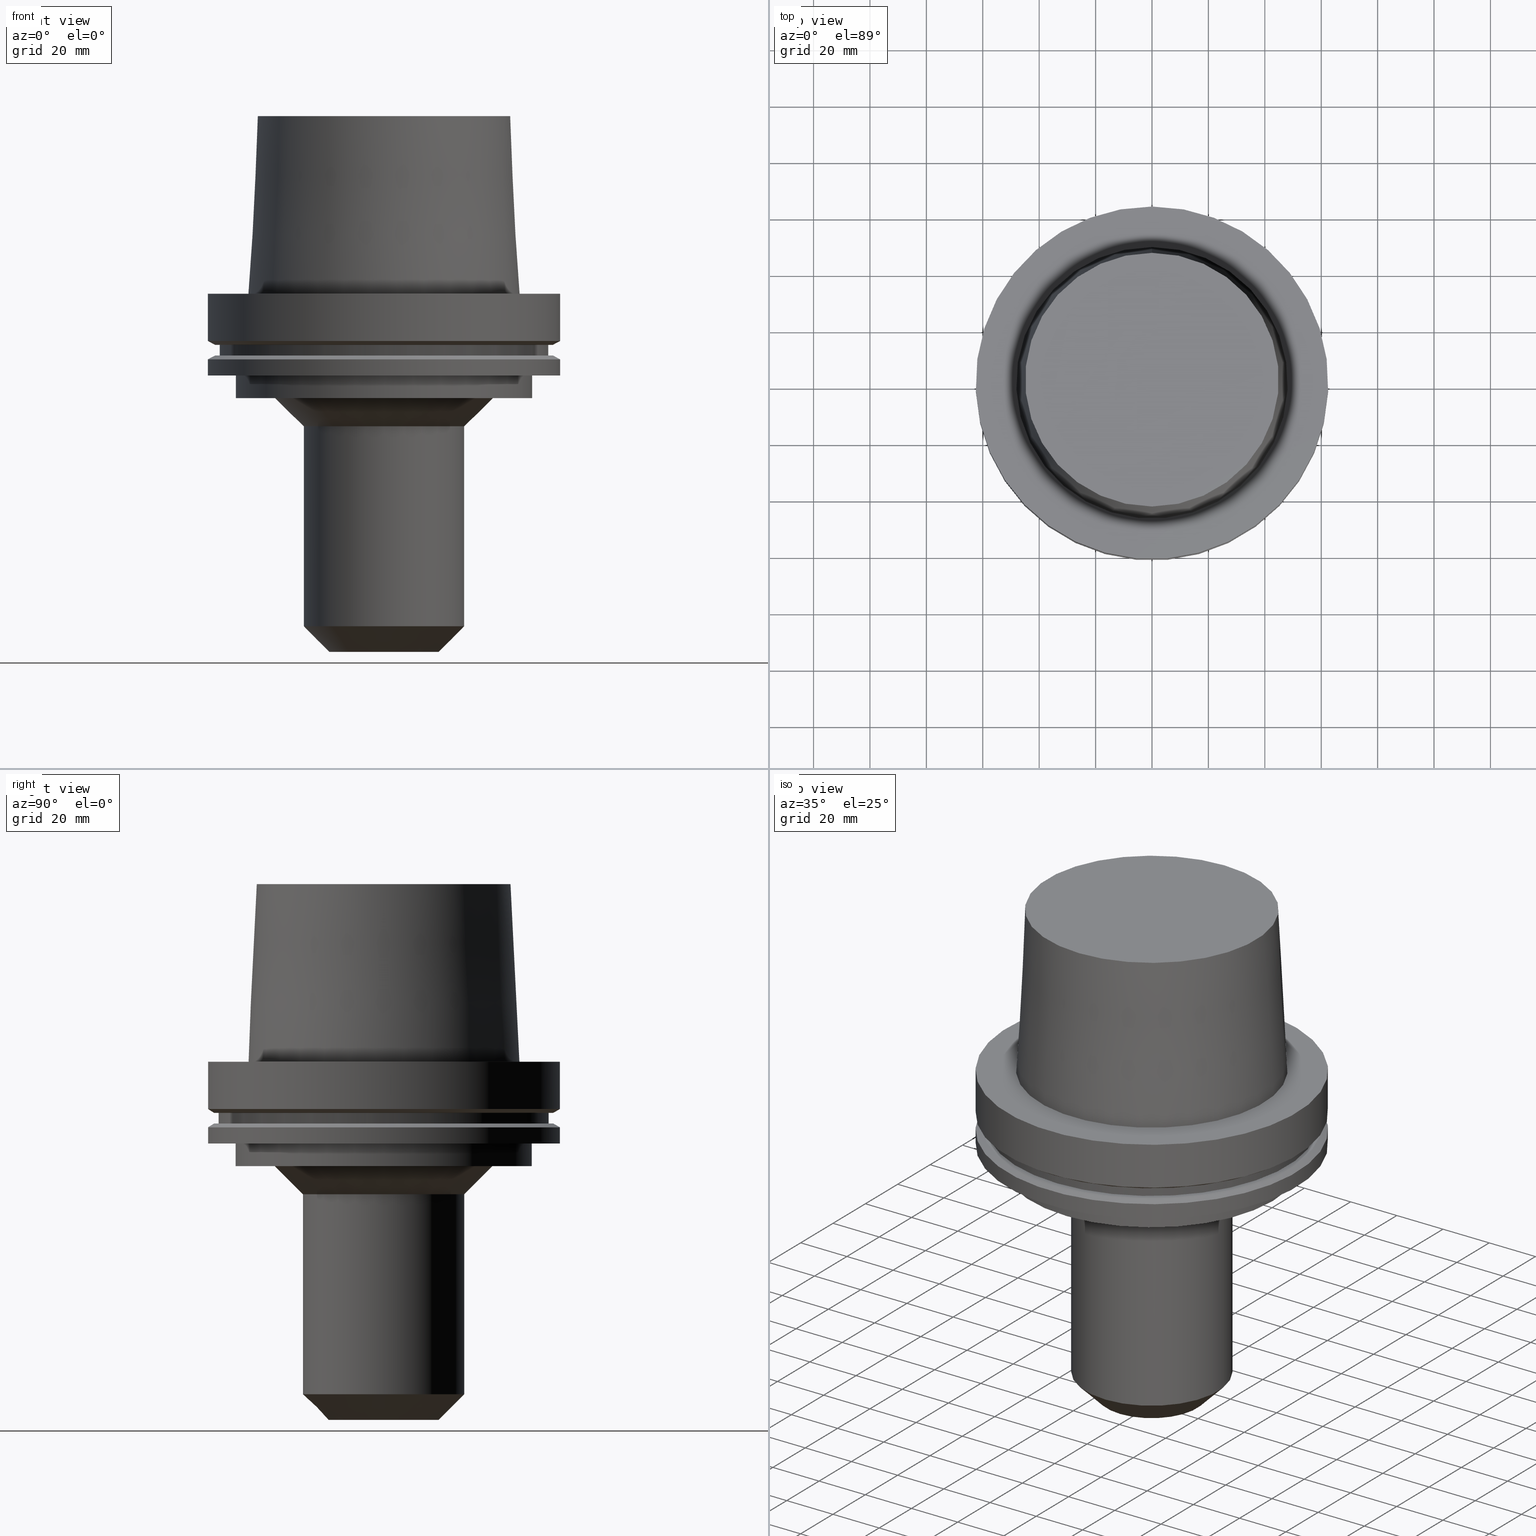
[diagram: canonical four-view strip — front | top / right | iso, engineering-drawing reading convention]
A machine part, canonical four-view strip (front | top / right | iso — engineering-drawing reading convention). The complete STEP part file that produces these views, byte-faithful:
ISO-10303-21;
HEADER;
FILE_DESCRIPTION((''),'1');
FILE_NAME('V:/02_3D_Field-HP\X2\FF71FF6FFF8CFF9F5916\X0\2013/02_Step_Field-HP\X2\FF71FF6FFF8CFF9F5916\X0\2013/HSK-A125-EM1.000-5.stp','2017-07-11T00:19:47',(''),(''),'Spatial Interop R21 SP3','Kubotek KeyCreator 2011 V10.0.2 (22737)',' ');
FILE_SCHEMA(('automotive_design'));
ENDSEC;
DATA;
#1=MECHANICAL_DESIGN_GEOMETRIC_PRESENTATION_REPRESENTATION(' ',(#10,#11,#12,#13,#14,#15,#16,#17,#18,#19,#20,#21,#22,#23,#24,#25,#26,#27,#28,#29,#30,#31,#32,#33,#34,#35,#36,#37,#38,#39,#40,#41,#42,#43),#6);
#2=PRODUCT_DEFINITION_CONTEXT('',#44,'design');
#3=APPLICATION_PROTOCOL_DEFINITION('INTERNATIONAL STANDARD','automotive_design',1994,#44);
#4=PRODUCT_CATEGORY_RELATIONSHIP('NONE','NONE',#45,#46);
#5=SHAPE_DEFINITION_REPRESENTATION(#47,#48);
#6= (GEOMETRIC_REPRESENTATION_CONTEXT(3)GLOBAL_UNCERTAINTY_ASSIGNED_CONTEXT((#51))GLOBAL_UNIT_ASSIGNED_CONTEXT((#53,#54,#55))REPRESENTATION_CONTEXT('NONE','WORKSPACE'));
#10=STYLED_ITEM('',(#57,#58),#59);
#11=STYLED_ITEM('',(#60,#61),#62);
#12=STYLED_ITEM('',(#63),#64);
#13=STYLED_ITEM('',(#65,#66),#67);
#14=STYLED_ITEM('',(#68,#69),#70);
#15=STYLED_ITEM('',(#71,#72),#73);
#16=STYLED_ITEM('',(#74,#75),#76);
#17=STYLED_ITEM('',(#77,#78),#79);
#18=STYLED_ITEM('',(#80),#81);
#19=STYLED_ITEM('',(#82,#83),#84);
#20=STYLED_ITEM('',(#85,#86),#87);
#21=STYLED_ITEM('',(#88,#89),#90);
#22=STYLED_ITEM('',(#91,#92),#93);
#23=STYLED_ITEM('',(#94),#95);
#24=STYLED_ITEM('',(#96),#97);
#25=STYLED_ITEM('',(#98),#99);
#26=STYLED_ITEM('',(#100),#101);
#27=STYLED_ITEM('',(#102),#103);
#28=STYLED_ITEM('',(#104),#105);
#29=STYLED_ITEM('',(#106,#107),#108);
#30=STYLED_ITEM('',(#109),#110);
#31=STYLED_ITEM('',(#111),#112);
#32=STYLED_ITEM('',(#113,#114),#115);
#33=STYLED_ITEM('',(#116,#117),#118);
#34=STYLED_ITEM('',(#119),#120);
#35=STYLED_ITEM('',(#121),#122);
#36=STYLED_ITEM('',(#123,#124),#125);
#37=STYLED_ITEM('',(#126),#127);
#38=STYLED_ITEM('',(#128),#129);
#39=STYLED_ITEM('',(#130,#131),#132);
#40=STYLED_ITEM('',(#133),#134);
#41=STYLED_ITEM('',(#135,#136),#137);
#42=STYLED_ITEM('',(#138,#139),#140);
#43=STYLED_ITEM('',(#141),#142);
#44=APPLICATION_CONTEXT(' ');
#45=PRODUCT_CATEGORY('part','NONE');
#46=PRODUCT_RELATED_PRODUCT_CATEGORY('detail',' ',(#143));
#47=PRODUCT_DEFINITION_SHAPE('NONE','NONE',#144);
#48=ADVANCED_BREP_SHAPE_REPRESENTATION('Unnamed[1]',(#73,#145),#6);
#51=UNCERTAINTY_MEASURE_WITH_UNIT(LENGTH_MEASURE(1.0E-006),#53,'','');
#53= (CONVERSION_BASED_UNIT('MILLIMETRE',#148)LENGTH_UNIT()NAMED_UNIT(#151));
#54= (NAMED_UNIT(#153)PLANE_ANGLE_UNIT()SI_UNIT($,.RADIAN.));
#55= (NAMED_UNIT(#153)SOLID_ANGLE_UNIT()SI_UNIT($,.STERADIAN.));
#57=PRESENTATION_STYLE_ASSIGNMENT((#159));
#58=PRESENTATION_STYLE_ASSIGNMENT((#160));
#59=ADVANCED_FACE('Unnamed[1]',(#161,#162),#163,.T.);
#60=PRESENTATION_STYLE_ASSIGNMENT((#164));
#61=PRESENTATION_STYLE_ASSIGNMENT((#165));
#62=ADVANCED_FACE('Unnamed[1]',(#166,#167),#168,.T.);
#63=PRESENTATION_STYLE_ASSIGNMENT((#169));
#64=EDGE_CURVE('Unnamed[1]',#170,#170,#171,.T.);
#65=PRESENTATION_STYLE_ASSIGNMENT((#172));
#66=PRESENTATION_STYLE_ASSIGNMENT((#173));
#67=ADVANCED_FACE('Unnamed[1]',(#174),#175,.T.);
#68=PRESENTATION_STYLE_ASSIGNMENT((#176));
#69=PRESENTATION_STYLE_ASSIGNMENT((#177));
#70=ADVANCED_FACE('Unnamed[1]',(#178,#179),#180,.T.);
#71=PRESENTATION_STYLE_ASSIGNMENT((#181));
#72=PRESENTATION_STYLE_ASSIGNMENT((#182));
#73=MANIFOLD_SOLID_BREP('Unnamed[1]',#183);
#74=PRESENTATION_STYLE_ASSIGNMENT((#184));
#75=PRESENTATION_STYLE_ASSIGNMENT((#185));
#76=ADVANCED_FACE('Unnamed[1]',(#186,#187),#188,.T.);
#77=PRESENTATION_STYLE_ASSIGNMENT((#189));
#78=PRESENTATION_STYLE_ASSIGNMENT((#190));
#79=ADVANCED_FACE('Unnamed[1]',(#191,#192),#193,.T.);
#80=PRESENTATION_STYLE_ASSIGNMENT((#194));
#81=EDGE_CURVE('Unnamed[1]',#195,#195,#196,.T.);
#82=PRESENTATION_STYLE_ASSIGNMENT((#197));
#83=PRESENTATION_STYLE_ASSIGNMENT((#198));
#84=ADVANCED_FACE('Unnamed[1]',(#199,#200),#201,.T.);
#85=PRESENTATION_STYLE_ASSIGNMENT((#202));
#86=PRESENTATION_STYLE_ASSIGNMENT((#203));
#87=ADVANCED_FACE('Unnamed[1]',(#204,#205),#206,.T.);
#88=PRESENTATION_STYLE_ASSIGNMENT((#207));
#89=PRESENTATION_STYLE_ASSIGNMENT((#208));
#90=ADVANCED_FACE('Unnamed[1]',(#209,#210),#211,.T.);
#91=PRESENTATION_STYLE_ASSIGNMENT((#212));
#92=PRESENTATION_STYLE_ASSIGNMENT((#213));
#93=ADVANCED_FACE('Unnamed[1]',(#214,#215),#216,.T.);
#94=PRESENTATION_STYLE_ASSIGNMENT((#217));
#95=EDGE_CURVE('Unnamed[1]',#218,#218,#219,.T.);
#96=PRESENTATION_STYLE_ASSIGNMENT((#220));
#97=EDGE_CURVE('Unnamed[1]',#221,#221,#222,.T.);
#98=PRESENTATION_STYLE_ASSIGNMENT((#223));
#99=EDGE_CURVE('Unnamed[1]',#224,#224,#225,.T.);
#100=PRESENTATION_STYLE_ASSIGNMENT((#226));
#101=EDGE_CURVE('Unnamed[1]',#227,#227,#228,.T.);
#102=PRESENTATION_STYLE_ASSIGNMENT((#229));
#103=EDGE_CURVE('Unnamed[1]',#230,#230,#231,.T.);
#104=PRESENTATION_STYLE_ASSIGNMENT((#232));
#105=EDGE_CURVE('Unnamed[1]',#233,#233,#234,.T.);
#106=PRESENTATION_STYLE_ASSIGNMENT((#235));
#107=PRESENTATION_STYLE_ASSIGNMENT((#236));
#108=ADVANCED_FACE('Unnamed[1]',(#237,#238),#239,.T.);
#109=PRESENTATION_STYLE_ASSIGNMENT((#240));
#110=EDGE_CURVE('Unnamed[1]',#241,#241,#242,.T.);
#111=PRESENTATION_STYLE_ASSIGNMENT((#243));
#112=EDGE_CURVE('Unnamed[1]',#244,#244,#245,.T.);
#113=PRESENTATION_STYLE_ASSIGNMENT((#246));
#114=PRESENTATION_STYLE_ASSIGNMENT((#247));
#115=ADVANCED_FACE('Unnamed[1]',(#248),#249,.T.);
#116=PRESENTATION_STYLE_ASSIGNMENT((#250));
#117=PRESENTATION_STYLE_ASSIGNMENT((#251));
#118=ADVANCED_FACE('Unnamed[1]',(#252,#253),#254,.T.);
#119=PRESENTATION_STYLE_ASSIGNMENT((#255));
#120=EDGE_CURVE('Unnamed[1]',#256,#256,#257,.T.);
#121=PRESENTATION_STYLE_ASSIGNMENT((#258));
#122=EDGE_CURVE('Unnamed[1]',#259,#259,#260,.T.);
#123=PRESENTATION_STYLE_ASSIGNMENT((#261));
#124=PRESENTATION_STYLE_ASSIGNMENT((#262));
#125=ADVANCED_FACE('Unnamed[1]',(#263,#264),#265,.T.);
#126=PRESENTATION_STYLE_ASSIGNMENT((#266));
#127=EDGE_CURVE('Unnamed[1]',#267,#267,#268,.T.);
#128=PRESENTATION_STYLE_ASSIGNMENT((#269));
#129=EDGE_CURVE('Unnamed[1]',#270,#270,#271,.T.);
#130=PRESENTATION_STYLE_ASSIGNMENT((#272));
#131=PRESENTATION_STYLE_ASSIGNMENT((#273));
#132=ADVANCED_FACE('Unnamed[1]',(#274,#275),#276,.T.);
#133=PRESENTATION_STYLE_ASSIGNMENT((#277));
#134=EDGE_CURVE('Unnamed[1]',#278,#278,#279,.T.);
#135=PRESENTATION_STYLE_ASSIGNMENT((#280));
#136=PRESENTATION_STYLE_ASSIGNMENT((#281));
#137=ADVANCED_FACE('Unnamed[1]',(#282,#283),#284,.T.);
#138=PRESENTATION_STYLE_ASSIGNMENT((#285));
#139=PRESENTATION_STYLE_ASSIGNMENT((#286));
#140=ADVANCED_FACE('Unnamed[1]',(#287,#288),#289,.T.);
#141=PRESENTATION_STYLE_ASSIGNMENT((#290));
#142=EDGE_CURVE('Unnamed[1]',#291,#291,#292,.T.);
#143=PRODUCT('Unnamed[1]','Unnamed[1]','PART-Unnamed[1]-DESC',(#293));
#144=PRODUCT_DEFINITION('NONE','NONE',#294,#2);
#145=AXIS2_PLACEMENT_3D('',#295,#296,#297);
#148=LENGTH_MEASURE_WITH_UNIT(LENGTH_MEASURE(1.0),#298);
#151=DIMENSIONAL_EXPONENTS(1.0,0.0,0.0,0.0,0.0,0.0,0.0);
#153=DIMENSIONAL_EXPONENTS(0.0,0.0,0.0,0.0,0.0,0.0,0.0);
#159=SURFACE_STYLE_USAGE(.BOTH.,#299);
#160=CURVE_STYLE('',#300,POSITIVE_LENGTH_MEASURE(1000.0),#301);
#161=FACE_BOUND('',#302,.T.);
#162=FACE_BOUND('',#303,.T.);
#163=CYLINDRICAL_SURFACE('',#304,62.5000000000001);
#164=SURFACE_STYLE_USAGE(.BOTH.,#305);
#165=CURVE_STYLE('',#306,POSITIVE_LENGTH_MEASURE(1000.0),#307);
#166=FACE_BOUND('',#308,.T.);
#167=FACE_BOUND('',#309,.T.);
#168=CONICAL_SURFACE('',#310,46.5560961923844,0.0500583457465964);
#169=CURVE_STYLE('',#311,POSITIVE_LENGTH_MEASURE(1000.0),#312);
#170=VERTEX_POINT('',#313);
#171=CIRCLE('',#314,52.4999999999998);
#172=SURFACE_STYLE_USAGE(.BOTH.,#315);
#173=CURVE_STYLE('',#316,POSITIVE_LENGTH_MEASURE(1000.0),#317);
#174=FACE_OUTER_BOUND('',#318,.T.);
#175=PLANE('',#319);
#176=SURFACE_STYLE_USAGE(.BOTH.,#320);
#177=CURVE_STYLE('',#321,POSITIVE_LENGTH_MEASURE(1000.0),#322);
#178=FACE_BOUND('',#323,.T.);
#179=FACE_BOUND('',#324,.T.);
#180=CYLINDRICAL_SURFACE('',#325,52.5);
#181=SURFACE_STYLE_USAGE(.BOTH.,#326);
#182=CURVE_STYLE('',#327,POSITIVE_LENGTH_MEASURE(1000.0),#328);
#183=CLOSED_SHELL('',(#115,#62,#137,#59,#90,#118,#84,#87,#93,#79,#125,#70,#140,#108,#132,#76,#67));
#184=SURFACE_STYLE_USAGE(.BOTH.,#329);
#185=CURVE_STYLE('',#330,POSITIVE_LENGTH_MEASURE(1000.0),#331);
#186=FACE_BOUND('',#332,.T.);
#187=FACE_BOUND('',#333,.T.);
#188=CONICAL_SURFACE('',#334,24.0500000000001,0.785398163397455);
#189=SURFACE_STYLE_USAGE(.BOTH.,#335);
#190=CURVE_STYLE('',#336,POSITIVE_LENGTH_MEASURE(1000.0),#337);
#191=FACE_BOUND('',#338,.T.);
#192=FACE_BOUND('',#339,.T.);
#193=CYLINDRICAL_SURFACE('',#340,62.5);
#194=CURVE_STYLE('',#341,POSITIVE_LENGTH_MEASURE(1000.0),#342);
#195=VERTEX_POINT('',#343);
#196=CIRCLE('',#344,19.5000000000001);
#197=SURFACE_STYLE_USAGE(.BOTH.,#345);
#198=CURVE_STYLE('',#346,POSITIVE_LENGTH_MEASURE(1000.0),#347);
#199=FACE_BOUND('',#348,.T.);
#200=FACE_BOUND('',#349,.T.);
#201=CYLINDRICAL_SURFACE('',#350,58.4999999999999);
#202=SURFACE_STYLE_USAGE(.BOTH.,#351);
#203=CURVE_STYLE('',#352,POSITIVE_LENGTH_MEASURE(1000.0),#353);
#204=FACE_OUTER_BOUND('',#354,.T.);
#205=FACE_BOUND('',#355,.T.);
#206=PLANE('',#356);
#207=SURFACE_STYLE_USAGE(.BOTH.,#357);
#208=CURVE_STYLE('',#358,POSITIVE_LENGTH_MEASURE(1000.0),#359);
#209=FACE_BOUND('',#360,.T.);
#210=FACE_BOUND('',#361,.T.);
#211=CONICAL_SURFACE('',#362,61.3112976320956,1.04719755119668);
#212=SURFACE_STYLE_USAGE(.BOTH.,#363);
#213=CURVE_STYLE('',#364,POSITIVE_LENGTH_MEASURE(1000.0),#365);
#214=FACE_BOUND('',#366,.T.);
#215=FACE_BOUND('',#367,.T.);
#216=CONICAL_SURFACE('',#368,61.311297632097,1.04719755119646);
#217=CURVE_STYLE('',#369,POSITIVE_LENGTH_MEASURE(1000.0),#370);
#218=VERTEX_POINT('',#371);
#219=CIRCLE('',#372,28.6);
#220=CURVE_STYLE('',#373,POSITIVE_LENGTH_MEASURE(1000.0),#374);
#221=VERTEX_POINT('',#375);
#222=CIRCLE('',#376,52.5000000000003);
#223=CURVE_STYLE('',#377,POSITIVE_LENGTH_MEASURE(1000.0),#378);
#224=VERTEX_POINT('',#379);
#225=CIRCLE('',#380,60.122595264194);
#226=CURVE_STYLE('',#381,POSITIVE_LENGTH_MEASURE(1000.0),#382);
#227=VERTEX_POINT('',#383);
#228=CIRCLE('',#384,62.5);
#229=CURVE_STYLE('',#385,POSITIVE_LENGTH_MEASURE(1000.0),#386);
#230=VERTEX_POINT('',#387);
#231=CIRCLE('',#388,38.6);
#232=CURVE_STYLE('',#389,POSITIVE_LENGTH_MEASURE(1000.0),#390);
#233=VERTEX_POINT('',#391);
#234=CIRCLE('',#392,28.6);
#235=SURFACE_STYLE_USAGE(.BOTH.,#393);
#236=CURVE_STYLE('',#394,POSITIVE_LENGTH_MEASURE(1000.0),#395);
#237=FACE_BOUND('',#396,.T.);
#238=FACE_BOUND('',#397,.T.);
#239=CONICAL_SURFACE('',#398,33.6,0.785398163397306);
#240=CURVE_STYLE('',#399,POSITIVE_LENGTH_MEASURE(1000.0),#400);
#241=VERTEX_POINT('',#401);
#242=CIRCLE('',#402,62.5000000000002);
#243=CURVE_STYLE('',#403,POSITIVE_LENGTH_MEASURE(1000.0),#404);
#244=VERTEX_POINT('',#405);
#245=CIRCLE('',#406,58.5);
#246=SURFACE_STYLE_USAGE(.BOTH.,#407);
#247=CURVE_STYLE('',#408,POSITIVE_LENGTH_MEASURE(1000.0),#409);
#248=FACE_OUTER_BOUND('',#410,.T.);
#249=PLANE('',#411);
#250=SURFACE_STYLE_USAGE(.BOTH.,#412);
#251=CURVE_STYLE('',#413,POSITIVE_LENGTH_MEASURE(1000.0),#414);
#252=FACE_BOUND('',#415,.T.);
#253=FACE_OUTER_BOUND('',#416,.T.);
#254=PLANE('',#417);
#255=CURVE_STYLE('',#418,POSITIVE_LENGTH_MEASURE(1000.0),#419);
#256=VERTEX_POINT('',#420);
#257=CIRCLE('',#421,44.9779398797591);
#258=CURVE_STYLE('',#422,POSITIVE_LENGTH_MEASURE(1000.0),#423);
#259=VERTEX_POINT('',#424);
#260=CIRCLE('',#425,48.1342525050097);
#261=SURFACE_STYLE_USAGE(.BOTH.,#426);
#262=CURVE_STYLE('',#427,POSITIVE_LENGTH_MEASURE(1000.0),#428);
#263=FACE_BOUND('',#429,.T.);
#264=FACE_OUTER_BOUND('',#430,.T.);
#265=PLANE('',#431);
#266=CURVE_STYLE('',#432,POSITIVE_LENGTH_MEASURE(1000.0),#433);
#267=VERTEX_POINT('',#434);
#268=CIRCLE('',#435,58.4999999999998);
#269=CURVE_STYLE('',#436,POSITIVE_LENGTH_MEASURE(1000.0),#437);
#270=VERTEX_POINT('',#438);
#271=CIRCLE('',#439,60.1225952641912);
#272=SURFACE_STYLE_USAGE(.BOTH.,#440);
#273=CURVE_STYLE('',#441,POSITIVE_LENGTH_MEASURE(1000.0),#442);
#274=FACE_BOUND('',#443,.T.);
#275=FACE_BOUND('',#444,.T.);
#276=CYLINDRICAL_SURFACE('',#445,28.6);
#277=CURVE_STYLE('',#446,POSITIVE_LENGTH_MEASURE(1000.0),#447);
#278=VERTEX_POINT('',#448);
#279=CIRCLE('',#449,62.5);
#280=SURFACE_STYLE_USAGE(.BOTH.,#450);
#281=CURVE_STYLE('',#451,POSITIVE_LENGTH_MEASURE(1000.0),#452);
#282=FACE_OUTER_BOUND('',#453,.T.);
#283=FACE_BOUND('',#454,.T.);
#284=PLANE('',#455);
#285=SURFACE_STYLE_USAGE(.BOTH.,#456);
#286=CURVE_STYLE('',#457,POSITIVE_LENGTH_MEASURE(1000.0),#458);
#287=FACE_BOUND('',#459,.T.);
#288=FACE_OUTER_BOUND('',#460,.T.);
#289=PLANE('',#461);
#290=CURVE_STYLE('',#462,POSITIVE_LENGTH_MEASURE(1000.0),#463);
#291=VERTEX_POINT('',#464);
#292=CIRCLE('',#465,62.5);
#293=PRODUCT_CONTEXT('',#44,'mechanical');
#294=PRODUCT_DEFINITION_FORMATION_WITH_SPECIFIED_SOURCE(' ','NONE',#143,.NOT_KNOWN.);
#295=CARTESIAN_POINT('',(0.0,0.0,0.0));
#296=DIRECTION('',(0.0,0.0,1.0));
#297=DIRECTION('',(1.0,0.0,0.0));
#298= (NAMED_UNIT(#151)LENGTH_UNIT()SI_UNIT(.MILLI.,.METRE.));
#299=SURFACE_SIDE_STYLE('',(#467));
#300=DRAUGHTING_PRE_DEFINED_CURVE_FONT('continuous');
#301=COLOUR_RGB('',0.0,1.0,0.0);
#302=EDGE_LOOP('',(#468));
#303=EDGE_LOOP('',(#469));
#304=AXIS2_PLACEMENT_3D('',#470,#471,#472);
#305=SURFACE_SIDE_STYLE('',(#473));
#306=DRAUGHTING_PRE_DEFINED_CURVE_FONT('continuous');
#307=COLOUR_RGB('',0.0,1.0,0.0);
#308=EDGE_LOOP('',(#474));
#309=EDGE_LOOP('',(#475));
#310=AXIS2_PLACEMENT_3D('',#476,#477,#478);
#311=DRAUGHTING_PRE_DEFINED_CURVE_FONT('continuous');
#312=COLOUR_RGB('',0.0,1.0,0.0);
#313=CARTESIAN_POINT('',(2.26559657842261E-015,52.4999999999998,-37.0));
#314=AXIS2_PLACEMENT_3D('',#479,#480,#481);
#315=SURFACE_SIDE_STYLE('',(#482));
#316=DRAUGHTING_PRE_DEFINED_CURVE_FONT('continuous');
#317=COLOUR_RGB('',0.0,1.0,0.0);
#318=EDGE_LOOP('',(#483));
#319=AXIS2_PLACEMENT_3D('',#484,#485,#486);
#320=SURFACE_SIDE_STYLE('',(#487));
#321=DRAUGHTING_PRE_DEFINED_CURVE_FONT('continuous');
#322=COLOUR_RGB('',0.0,1.0,0.0);
#323=EDGE_LOOP('',(#488));
#324=EDGE_LOOP('',(#489));
#325=AXIS2_PLACEMENT_3D('',#490,#491,#492);
#326=SURFACE_SIDE_STYLE('',(#493));
#327=DRAUGHTING_PRE_DEFINED_CURVE_FONT('continuous');
#328=COLOUR_RGB('',0.0,1.0,0.0);
#329=SURFACE_SIDE_STYLE('',(#494));
#330=DRAUGHTING_PRE_DEFINED_CURVE_FONT('continuous');
#331=COLOUR_RGB('',0.0,1.0,0.0);
#332=EDGE_LOOP('',(#495));
#333=EDGE_LOOP('',(#496));
#334=AXIS2_PLACEMENT_3D('',#497,#498,#499);
#335=SURFACE_SIDE_STYLE('',(#500));
#336=DRAUGHTING_PRE_DEFINED_CURVE_FONT('continuous');
#337=COLOUR_RGB('',0.0,1.0,0.0);
#338=EDGE_LOOP('',(#501));
#339=EDGE_LOOP('',(#502));
#340=AXIS2_PLACEMENT_3D('',#503,#504,#505);
#341=DRAUGHTING_PRE_DEFINED_CURVE_FONT('continuous');
#342=COLOUR_RGB('',0.0,1.0,0.0);
#343=CARTESIAN_POINT('',(7.77650717458569E-015,19.5000000000001,-127.0));
#344=AXIS2_PLACEMENT_3D('',#506,#507,#508);
#345=SURFACE_SIDE_STYLE('',(#509));
#346=DRAUGHTING_PRE_DEFINED_CURVE_FONT('continuous');
#347=COLOUR_RGB('',0.0,1.0,0.0);
#348=EDGE_LOOP('',(#510));
#349=EDGE_LOOP('',(#511));
#350=AXIS2_PLACEMENT_3D('',#512,#513,#514);
#351=SURFACE_SIDE_STYLE('',(#515));
#352=DRAUGHTING_PRE_DEFINED_CURVE_FONT('continuous');
#353=COLOUR_RGB('',0.0,1.0,0.0);
#354=EDGE_LOOP('',(#516));
#355=EDGE_LOOP('',(#517));
#356=AXIS2_PLACEMENT_3D('',#518,#519,#520);
#357=SURFACE_SIDE_STYLE('',(#521));
#358=DRAUGHTING_PRE_DEFINED_CURVE_FONT('continuous');
#359=COLOUR_RGB('',0.0,1.0,0.0);
#360=EDGE_LOOP('',(#522));
#361=EDGE_LOOP('',(#523));
#362=AXIS2_PLACEMENT_3D('',#524,#525,#526);
#363=SURFACE_SIDE_STYLE('',(#527));
#364=DRAUGHTING_PRE_DEFINED_CURVE_FONT('continuous');
#365=COLOUR_RGB('',0.0,1.0,0.0);
#366=EDGE_LOOP('',(#528));
#367=EDGE_LOOP('',(#529));
#368=AXIS2_PLACEMENT_3D('',#530,#531,#532);
#369=DRAUGHTING_PRE_DEFINED_CURVE_FONT('continuous');
#370=COLOUR_RGB('',0.0,1.0,0.0);
#371=CARTESIAN_POINT('',(7.21929288097366E-015,28.6,-117.9));
#372=AXIS2_PLACEMENT_3D('',#533,#534,#535);
#373=DRAUGHTING_PRE_DEFINED_CURVE_FONT('continuous');
#374=COLOUR_RGB('',0.0,1.0,0.0);
#375=CARTESIAN_POINT('',(1.77573785876367E-015,52.5000000000003,-29.0000000000001));
#376=AXIS2_PLACEMENT_3D('',#536,#537,#538);
#377=DRAUGHTING_PRE_DEFINED_CURVE_FONT('continuous');
#378=COLOUR_RGB('',0.0,1.0,0.0);
#379=CARTESIAN_POINT('',(1.33945743656747E-015,60.122595264194,-21.8750000000009));
#380=AXIS2_PLACEMENT_3D('',#539,#540,#541);
#381=DRAUGHTING_PRE_DEFINED_CURVE_FONT('continuous');
#382=COLOUR_RGB('',0.0,1.0,0.0);
#383=CARTESIAN_POINT('',(1.77573785876367E-015,62.5,-29.0000000000001));
#384=AXIS2_PLACEMENT_3D('',#542,#543,#544);
#385=DRAUGHTING_PRE_DEFINED_CURVE_FONT('continuous');
#386=COLOUR_RGB('',0.0,1.0,0.0);
#387=CARTESIAN_POINT('',(2.26559657842261E-015,38.6,-37.0));
#388=AXIS2_PLACEMENT_3D('',#545,#546,#547);
#389=DRAUGHTING_PRE_DEFINED_CURVE_FONT('continuous');
#390=COLOUR_RGB('',0.0,1.0,0.0);
#391=CARTESIAN_POINT('',(2.87791997799646E-015,28.6,-47.0000000000029));
#392=AXIS2_PLACEMENT_3D('',#548,#549,#550);
#393=SURFACE_SIDE_STYLE('',(#551));
#394=DRAUGHTING_PRE_DEFINED_CURVE_FONT('continuous');
#395=COLOUR_RGB('',0.0,1.0,0.0);
#396=EDGE_LOOP('',(#552));
#397=EDGE_LOOP('',(#553));
#398=AXIS2_PLACEMENT_3D('',#554,#555,#556);
#399=DRAUGHTING_PRE_DEFINED_CURVE_FONT('continuous');
#400=COLOUR_RGB('',0.0,1.0,0.0);
#401=CARTESIAN_POINT('',(-5.58935713239973E-030,62.5000000000002,8.63540424946709E-014));
#402=AXIS2_PLACEMENT_3D('',#557,#558,#559);
#403=DRAUGHTING_PRE_DEFINED_CURVE_FONT('continuous');
#404=COLOUR_RGB('',0.0,1.0,0.0);
#405=CARTESIAN_POINT('',(1.10983616172739E-015,58.5,-18.1250000000017));
#406=AXIS2_PLACEMENT_3D('',#560,#561,#562);
#407=SURFACE_SIDE_STYLE('',(#563));
#408=DRAUGHTING_PRE_DEFINED_CURVE_FONT('continuous');
#409=COLOUR_RGB('',0.0,1.0,0.0);
#410=EDGE_LOOP('',(#564));
#411=AXIS2_PLACEMENT_3D('',#565,#566,#567);
#412=SURFACE_SIDE_STYLE('',(#568));
#413=DRAUGHTING_PRE_DEFINED_CURVE_FONT('continuous');
#414=COLOUR_RGB('',0.0,1.0,0.0);
#415=EDGE_LOOP('',(#569));
#416=EDGE_LOOP('',(#570));
#417=AXIS2_PLACEMENT_3D('',#571,#572,#573);
#418=DRAUGHTING_PRE_DEFINED_CURVE_FONT('continuous');
#419=COLOUR_RGB('',0.0,1.0,0.0);
#420=CARTESIAN_POINT('',(-3.85763741731416E-015,44.9779398797591,62.9999999999999));
#421=AXIS2_PLACEMENT_3D('',#574,#575,#576);
#422=DRAUGHTING_PRE_DEFINED_CURVE_FONT('continuous');
#423=COLOUR_RGB('',0.0,1.0,0.0);
#424=CARTESIAN_POINT('',(3.88342032297484E-029,48.1342525050097,-6.38005254174039E-013));
#425=AXIS2_PLACEMENT_3D('',#577,#578,#579);
#426=SURFACE_SIDE_STYLE('',(#580));
#427=DRAUGHTING_PRE_DEFINED_CURVE_FONT('continuous');
#428=COLOUR_RGB('',0.0,1.0,0.0);
#429=EDGE_LOOP('',(#581));
#430=EDGE_LOOP('',(#582));
#431=AXIS2_PLACEMENT_3D('',#583,#584,#585);
#432=DRAUGHTING_PRE_DEFINED_CURVE_FONT('continuous');
#433=COLOUR_RGB('',0.0,1.0,0.0);
#434=CARTESIAN_POINT('',(1.33945743656732E-015,58.4999999999998,-21.8749999999984));
#435=AXIS2_PLACEMENT_3D('',#586,#587,#588);
#436=DRAUGHTING_PRE_DEFINED_CURVE_FONT('continuous');
#437=COLOUR_RGB('',0.0,1.0,0.0);
#438=CARTESIAN_POINT('',(1.10983616172729E-015,60.1225952641912,-18.1250000000001));
#439=AXIS2_PLACEMENT_3D('',#589,#590,#591);
#440=SURFACE_SIDE_STYLE('',(#592));
#441=DRAUGHTING_PRE_DEFINED_CURVE_FONT('continuous');
#442=COLOUR_RGB('',0.0,1.0,0.0);
#443=EDGE_LOOP('',(#593));
#444=EDGE_LOOP('',(#594));
#445=AXIS2_PLACEMENT_3D('',#595,#596,#597);
#446=DRAUGHTING_PRE_DEFINED_CURVE_FONT('continuous');
#447=COLOUR_RGB('',0.0,1.0,0.0);
#448=CARTESIAN_POINT('',(1.42350465640827E-015,62.5,-23.2475952641916));
#449=AXIS2_PLACEMENT_3D('',#598,#599,#600);
#450=SURFACE_SIDE_STYLE('',(#601));
#451=DRAUGHTING_PRE_DEFINED_CURVE_FONT('continuous');
#452=COLOUR_RGB('',0.0,1.0,0.0);
#453=EDGE_LOOP('',(#602));
#454=EDGE_LOOP('',(#603));
#455=AXIS2_PLACEMENT_3D('',#604,#605,#606);
#456=SURFACE_SIDE_STYLE('',(#607));
#457=DRAUGHTING_PRE_DEFINED_CURVE_FONT('continuous');
#458=COLOUR_RGB('',0.0,1.0,0.0);
#459=EDGE_LOOP('',(#608));
#460=EDGE_LOOP('',(#609));
#461=AXIS2_PLACEMENT_3D('',#610,#611,#612);
#462=DRAUGHTING_PRE_DEFINED_CURVE_FONT('continuous');
#463=COLOUR_RGB('',0.0,1.0,0.0);
#464=CARTESIAN_POINT('',(1.02578894188644E-015,62.5,-16.7524047358084));
#465=AXIS2_PLACEMENT_3D('',#613,#614,#615);
#467=SURFACE_STYLE_FILL_AREA(#616);
#468=ORIENTED_EDGE('',*,*,#142,.F.);
#469=ORIENTED_EDGE('',*,*,#110,.T.);
#470=CARTESIAN_POINT('',(5.12894470943215E-016,1.02578894188643E-015,-8.37620236790416));
#471=DIRECTION('',(6.12323399573677E-017,1.22464679914723E-016,-1.0));
#472=DIRECTION('',(-1.23259516440783E-032,1.0,1.22464679914723E-016));
#473=SURFACE_STYLE_FILL_AREA(#617);
#474=ORIENTED_EDGE('',*,*,#122,.F.);
#475=ORIENTED_EDGE('',*,*,#120,.T.);
#476=CARTESIAN_POINT('',(-1.92881870865706E-015,-3.85763741731411E-015,31.4999999999996));
#477=DIRECTION('',(6.12323399573676E-017,1.22464679914766E-016,-1.0));
#478=DIRECTION('',(-1.23259516440801E-032,1.0,1.22464679914766E-016));
#479=CARTESIAN_POINT('',(2.26559657842261E-015,4.53119315684521E-015,-37.0));
#480=DIRECTION('',(6.12323399573677E-017,1.22464679914709E-016,-1.0));
#481=DIRECTION('',(-1.23259516440784E-032,1.0,1.22464679914709E-016));
#482=SURFACE_STYLE_FILL_AREA(#618);
#483=ORIENTED_EDGE('',*,*,#81,.T.);
#484=CARTESIAN_POINT('',(7.77650717458569E-015,9.75000000000007,-127.0));
#485=DIRECTION('',(6.12323399573677E-017,1.22464679914735E-016,-1.0));
#486=DIRECTION('',(-1.23259516440783E-032,1.0,1.22464679914735E-016));
#487=SURFACE_STYLE_FILL_AREA(#619);
#488=ORIENTED_EDGE('',*,*,#64,.F.);
#489=ORIENTED_EDGE('',*,*,#97,.T.);
#490=CARTESIAN_POINT('',(2.02066721859314E-015,4.04133443718627E-015,-33.0000000000001));
#491=DIRECTION('',(6.12323399573677E-017,1.22464679914708E-016,-1.0));
#492=DIRECTION('',(-1.23259516440783E-032,1.0,1.22464679914708E-016));
#493=SURFACE_STYLE_FILL_AREA(#620);
#494=SURFACE_STYLE_FILL_AREA(#621);
#495=ORIENTED_EDGE('',*,*,#81,.F.);
#496=ORIENTED_EDGE('',*,*,#95,.T.);
#497=CARTESIAN_POINT('',(7.49790002777968E-015,1.49958000555593E-014,-122.45));
#498=DIRECTION('',(-6.12323399573677E-017,-1.22464679914718E-016,1.0));
#499=DIRECTION('',(-1.23259516440798E-032,1.0,1.22464679914719E-016));
#500=SURFACE_STYLE_FILL_AREA(#622);
#501=ORIENTED_EDGE('',*,*,#101,.F.);
#502=ORIENTED_EDGE('',*,*,#134,.T.);
#503=CARTESIAN_POINT('',(1.59962125758597E-015,3.19924251517194E-015,-26.1237976320958));
#504=DIRECTION('',(6.12323399573677E-017,1.22464679914723E-016,-1.0));
#505=DIRECTION('',(-1.23259516440783E-032,1.0,1.22464679914723E-016));
#506=CARTESIAN_POINT('',(7.77650717458569E-015,1.55530143491714E-014,-127.0));
#507=DIRECTION('',(6.12323399573677E-017,1.22464679914734E-016,-1.0));
#508=DIRECTION('',(-1.23259516440782E-032,1.0,1.22464679914734E-016));
#509=SURFACE_STYLE_FILL_AREA(#623);
#510=ORIENTED_EDGE('',*,*,#127,.F.);
#511=ORIENTED_EDGE('',*,*,#112,.T.);
#512=CARTESIAN_POINT('',(1.22464679914736E-015,2.44929359829471E-015,-20.0));
#513=DIRECTION('',(6.12323399573677E-017,1.22464679914762E-016,-1.0));
#514=DIRECTION('',(-1.23259516440783E-032,1.0,1.22464679914762E-016));
#515=SURFACE_STYLE_FILL_AREA(#624);
#516=ORIENTED_EDGE('',*,*,#99,.F.);
#517=ORIENTED_EDGE('',*,*,#127,.T.);
#518=CARTESIAN_POINT('',(1.33945743656739E-015,59.3112976320969,-21.8749999999996));
#519=DIRECTION('',(-6.12323399573677E-017,1.54130347502767E-012,1.0));
#520=DIRECTION('',(-9.43727912076354E-029,-1.0,1.54130347502767E-012));
#521=SURFACE_STYLE_FILL_AREA(#625);
#522=ORIENTED_EDGE('',*,*,#129,.F.);
#523=ORIENTED_EDGE('',*,*,#142,.T.);
#524=CARTESIAN_POINT('',(1.06781255180686E-015,2.13562510361373E-015,-17.4387023679042));
#525=DIRECTION('',(-6.12323399573676E-017,-1.22464679914786E-016,1.0));
#526=DIRECTION('',(-1.23259516440761E-032,1.0,1.22464679914786E-016));
#527=SURFACE_STYLE_FILL_AREA(#626);
#528=ORIENTED_EDGE('',*,*,#134,.F.);
#529=ORIENTED_EDGE('',*,*,#99,.T.);
#530=CARTESIAN_POINT('',(1.38148104648787E-015,2.76296209297574E-015,-22.5612976320962));
#531=DIRECTION('',(6.12323399573677E-017,1.22464679914783E-016,-1.0));
#532=DIRECTION('',(-1.23259516440758E-032,1.0,1.22464679914783E-016));
#533=CARTESIAN_POINT('',(7.21929288097366E-015,1.44385857619473E-014,-117.9));
#534=DIRECTION('',(6.12323399573677E-017,1.22464679914765E-016,-1.0));
#535=DIRECTION('',(-1.23259516440808E-032,1.0,1.22464679914765E-016));
#536=CARTESIAN_POINT('',(1.77573785876367E-015,3.55147571752733E-015,-29.0000000000001));
#537=DIRECTION('',(6.12323399573677E-017,1.22464679914708E-016,-1.0));
#538=DIRECTION('',(-1.23259516440782E-032,1.0,1.22464679914708E-016));
#539=CARTESIAN_POINT('',(1.33945743656747E-015,2.67891487313494E-015,-21.8750000000009));
#540=DIRECTION('',(6.12323399573677E-017,1.22464679914738E-016,-1.0));
#541=DIRECTION('',(-1.23259516440791E-032,1.0,1.22464679914738E-016));
#542=CARTESIAN_POINT('',(1.77573785876367E-015,3.55147571752733E-015,-29.0000000000001));
#543=DIRECTION('',(6.12323399573677E-017,1.22464679914723E-016,-1.0));
#544=DIRECTION('',(-1.23259516440783E-032,1.0,1.22464679914723E-016));
#545=CARTESIAN_POINT('',(2.26559657842261E-015,4.53119315684521E-015,-37.0));
#546=DIRECTION('',(6.12323399573677E-017,1.22464679914774E-016,-1.0));
#547=DIRECTION('',(-1.23259516440802E-032,1.0,1.22464679914774E-016));
#548=CARTESIAN_POINT('',(2.87791997799646E-015,5.75583995599291E-015,-47.0000000000029));
#549=DIRECTION('',(6.12323399573677E-017,1.22464679914765E-016,-1.0));
#550=DIRECTION('',(-1.23259516440808E-032,1.0,1.22464679914765E-016));
#551=SURFACE_STYLE_FILL_AREA(#627);
#552=ORIENTED_EDGE('',*,*,#105,.F.);
#553=ORIENTED_EDGE('',*,*,#103,.T.);
#554=CARTESIAN_POINT('',(2.57175827820953E-015,5.14351655641906E-015,-42.0000000000015));
#555=DIRECTION('',(-6.12323399573676E-017,-1.2246467991477E-016,1.0));
#556=DIRECTION('',(-1.23259516440804E-032,1.0,1.2246467991477E-016));
#557=CARTESIAN_POINT('',(-5.22098332203606E-030,-1.04419666440721E-029,8.5265128291212E-014));
#558=DIRECTION('',(6.12323399573677E-017,1.22464679914723E-016,-1.0));
#559=DIRECTION('',(-1.23259516440783E-032,1.0,1.22464679914723E-016));
#560=CARTESIAN_POINT('',(1.10983616172739E-015,2.21967232345478E-015,-18.1250000000017));
#561=DIRECTION('',(6.12323399573677E-017,1.22464679914762E-016,-1.0));
#562=DIRECTION('',(-1.23259516440783E-032,1.0,1.22464679914762E-016));
#563=SURFACE_STYLE_FILL_AREA(#628);
#564=ORIENTED_EDGE('',*,*,#120,.F.);
#565=CARTESIAN_POINT('',(-3.85763741731416E-015,22.4889699398795,62.9999999999999));
#566=DIRECTION('',(-6.12323399573677E-017,-1.22464679914735E-016,1.0));
#567=DIRECTION('',(1.23259516440783E-032,-1.0,-1.22464679914735E-016));
#568=SURFACE_STYLE_FILL_AREA(#629);
#569=ORIENTED_EDGE('',*,*,#112,.F.);
#570=ORIENTED_EDGE('',*,*,#129,.T.);
#571=CARTESIAN_POINT('',(1.10983616172734E-015,59.3112976320956,-18.1250000000009));
#572=DIRECTION('',(6.12323399573677E-017,9.85408931824386E-013,-1.0));
#573=DIRECTION('',(-6.03437218632281E-029,1.0,9.85408931824386E-013));
#574=CARTESIAN_POINT('',(-3.85763741731416E-015,-7.71527483462831E-015,62.9999999999999));
#575=DIRECTION('',(6.12323399573677E-017,1.22464679914719E-016,-1.0));
#576=DIRECTION('',(-1.23259516440771E-032,1.0,1.22464679914719E-016));
#577=CARTESIAN_POINT('',(3.91573749152705E-029,7.83147498305409E-029,-6.3948846218409E-013));
#578=DIRECTION('',(6.12323399573677E-017,1.22464679914742E-016,-1.0));
#579=DIRECTION('',(-1.23259516440755E-032,1.0,1.22464679914742E-016));
#580=SURFACE_STYLE_FILL_AREA(#630);
#581=ORIENTED_EDGE('',*,*,#97,.F.);
#582=ORIENTED_EDGE('',*,*,#101,.T.);
#583=CARTESIAN_POINT('',(1.77573785876367E-015,57.5000000000001,-29.0000000000001));
#584=DIRECTION('',(6.12323399573677E-017,1.22464679914735E-016,-1.0));
#585=DIRECTION('',(-1.23259516440783E-032,1.0,1.22464679914735E-016));
#586=CARTESIAN_POINT('',(1.33945743656732E-015,2.67891487313464E-015,-21.8749999999984));
#587=DIRECTION('',(6.12323399573677E-017,1.22464679914763E-016,-1.0));
#588=DIRECTION('',(-1.23259516440784E-032,1.0,1.22464679914763E-016));
#589=CARTESIAN_POINT('',(1.10983616172729E-015,2.21967232345459E-015,-18.1250000000001));
#590=DIRECTION('',(6.12323399573677E-017,1.22464679914743E-016,-1.0));
#591=DIRECTION('',(-1.23259516440797E-032,1.0,1.22464679914743E-016));
#592=SURFACE_STYLE_FILL_AREA(#631);
#593=ORIENTED_EDGE('',*,*,#95,.F.);
#594=ORIENTED_EDGE('',*,*,#105,.T.);
#595=CARTESIAN_POINT('',(5.04860642948506E-015,1.00972128589701E-014,-82.4500000000016));
#596=DIRECTION('',(6.12323399573677E-017,1.22464679914765E-016,-1.0));
#597=DIRECTION('',(-1.23259516440808E-032,1.0,1.22464679914765E-016));
#598=CARTESIAN_POINT('',(1.42350465640827E-015,2.84700931281654E-015,-23.2475952641916));
#599=DIRECTION('',(6.12323399573677E-017,1.22464679914723E-016,-1.0));
#600=DIRECTION('',(-1.23259516440783E-032,1.0,1.22464679914723E-016));
#601=SURFACE_STYLE_FILL_AREA(#632);
#602=ORIENTED_EDGE('',*,*,#110,.F.);
#603=ORIENTED_EDGE('',*,*,#122,.T.);
#604=CARTESIAN_POINT('',(1.66224230486744E-029,55.317126252505,-2.75825605839684E-013));
#605=DIRECTION('',(-6.12323399573677E-017,-5.04226666187264E-014,1.0));
#606=DIRECTION('',(3.09232501668564E-030,-1.0,-5.04226666187264E-014));
#607=SURFACE_STYLE_FILL_AREA(#633);
#608=ORIENTED_EDGE('',*,*,#103,.F.);
#609=ORIENTED_EDGE('',*,*,#64,.T.);
#610=CARTESIAN_POINT('',(2.26559657842261E-015,45.5499999999999,-37.0));
#611=DIRECTION('',(6.12323399573677E-017,1.22464679914735E-016,-1.0));
#612=DIRECTION('',(-1.23259516440783E-032,1.0,1.22464679914735E-016));
#613=CARTESIAN_POINT('',(1.02578894188644E-015,2.05157788377287E-015,-16.7524047358084));
#614=DIRECTION('',(6.12323399573676E-017,1.22464679914723E-016,-1.0));
#615=DIRECTION('',(-1.23259516440783E-032,1.0,1.22464679914723E-016));
#616=FILL_AREA_STYLE('',(#634));
#617=FILL_AREA_STYLE('',(#635));
#618=FILL_AREA_STYLE('',(#636));
#619=FILL_AREA_STYLE('',(#637));
#620=FILL_AREA_STYLE('',(#638));
#621=FILL_AREA_STYLE('',(#639));
#622=FILL_AREA_STYLE('',(#640));
#623=FILL_AREA_STYLE('',(#641));
#624=FILL_AREA_STYLE('',(#642));
#625=FILL_AREA_STYLE('',(#643));
#626=FILL_AREA_STYLE('',(#644));
#627=FILL_AREA_STYLE('',(#645));
#628=FILL_AREA_STYLE('',(#646));
#629=FILL_AREA_STYLE('',(#647));
#630=FILL_AREA_STYLE('',(#648));
#631=FILL_AREA_STYLE('',(#649));
#632=FILL_AREA_STYLE('',(#650));
#633=FILL_AREA_STYLE('',(#651));
#634=FILL_AREA_STYLE_COLOUR('',#652);
#635=FILL_AREA_STYLE_COLOUR('',#653);
#636=FILL_AREA_STYLE_COLOUR('',#654);
#637=FILL_AREA_STYLE_COLOUR('',#655);
#638=FILL_AREA_STYLE_COLOUR('',#656);
#639=FILL_AREA_STYLE_COLOUR('',#657);
#640=FILL_AREA_STYLE_COLOUR('',#658);
#641=FILL_AREA_STYLE_COLOUR('',#659);
#642=FILL_AREA_STYLE_COLOUR('',#660);
#643=FILL_AREA_STYLE_COLOUR('',#661);
#644=FILL_AREA_STYLE_COLOUR('',#662);
#645=FILL_AREA_STYLE_COLOUR('',#663);
#646=FILL_AREA_STYLE_COLOUR('',#664);
#647=FILL_AREA_STYLE_COLOUR('',#665);
#648=FILL_AREA_STYLE_COLOUR('',#666);
#649=FILL_AREA_STYLE_COLOUR('',#667);
#650=FILL_AREA_STYLE_COLOUR('',#668);
#651=FILL_AREA_STYLE_COLOUR('',#669);
#652=COLOUR_RGB('',0.0,1.0,0.0);
#653=COLOUR_RGB('',0.0,1.0,0.0);
#654=COLOUR_RGB('',0.0,1.0,0.0);
#655=COLOUR_RGB('',0.0,1.0,0.0);
#656=COLOUR_RGB('',0.0,1.0,0.0);
#657=COLOUR_RGB('',0.0,1.0,0.0);
#658=COLOUR_RGB('',0.0,1.0,0.0);
#659=COLOUR_RGB('',0.0,1.0,0.0);
#660=COLOUR_RGB('',0.0,1.0,0.0);
#661=COLOUR_RGB('',0.0,1.0,0.0);
#662=COLOUR_RGB('',0.0,1.0,0.0);
#663=COLOUR_RGB('',0.0,1.0,0.0);
#664=COLOUR_RGB('',0.0,1.0,0.0);
#665=COLOUR_RGB('',0.0,1.0,0.0);
#666=COLOUR_RGB('',0.0,1.0,0.0);
#667=COLOUR_RGB('',0.0,1.0,0.0);
#668=COLOUR_RGB('',0.0,1.0,0.0);
#669=COLOUR_RGB('',0.0,1.0,0.0);
ENDSEC;
END-ISO-10303-21;
